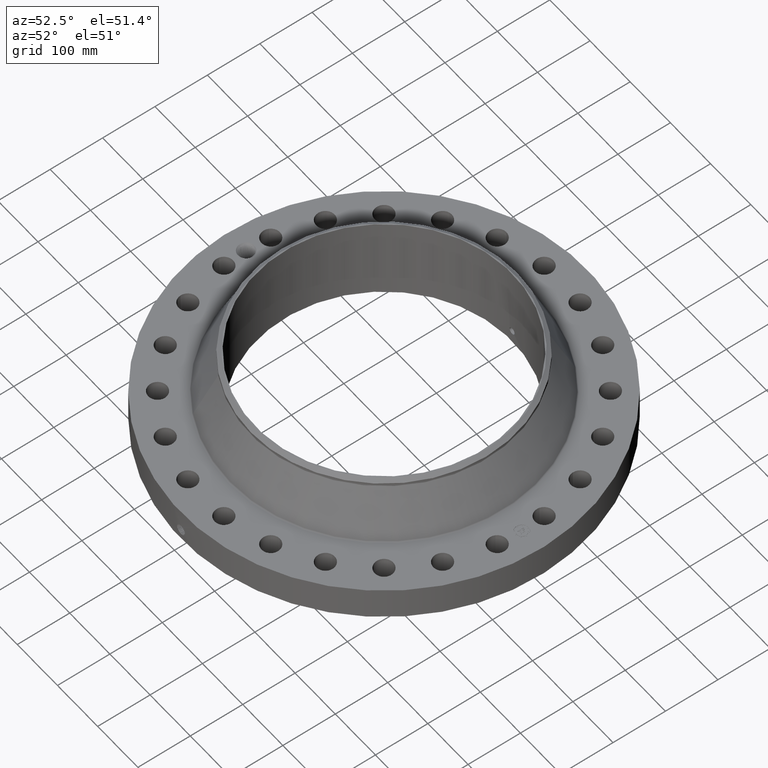
[diagram: clean part render]
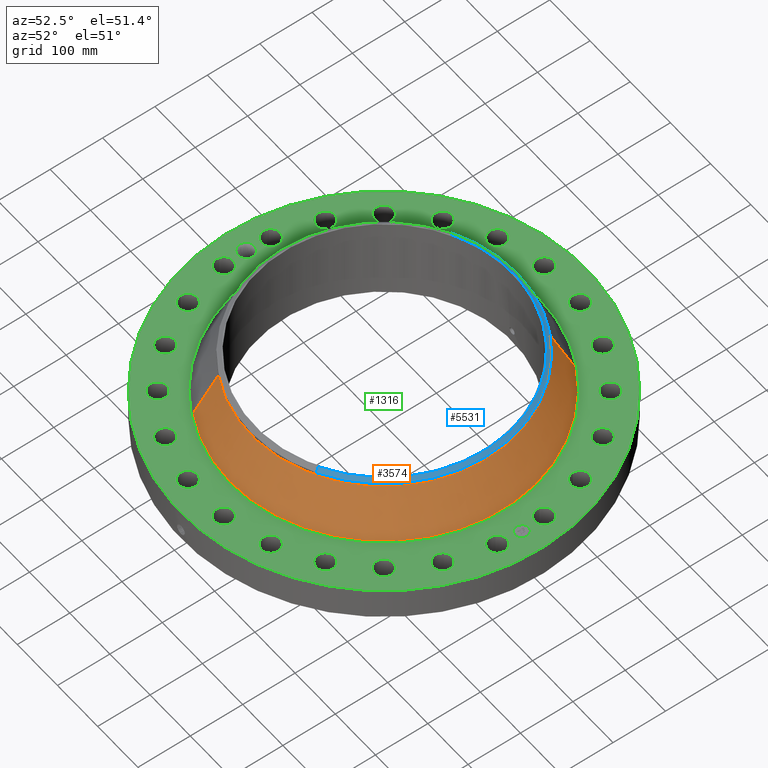
[diagram: same view with three faces highlighted in distinct colors, each labeled with its STEP entity id]
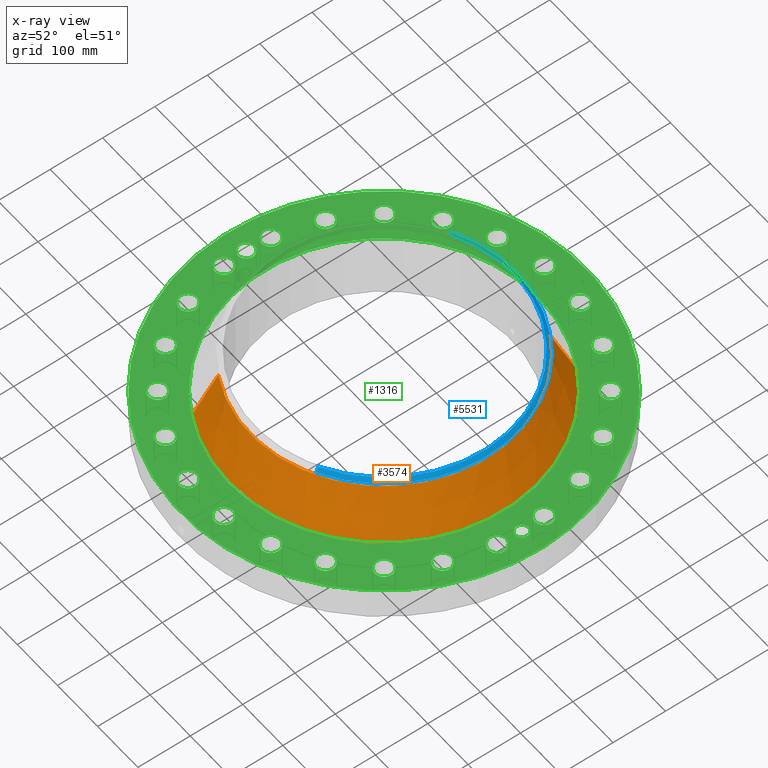
[diagram: x-ray of the same camera — body ghosted, the three highlighted faces saturated]
A machine part, auxiliary view with three faces highlighted in distinct colors.
The next image is the same camera in x-ray (body ghosted, the three faces saturated) — at least one of them is partly hidden behind the body in this view.
Their STEP definitions:

[orange] entity #3574 — the highlighted conical surface has half-angle 24.542 deg.
#2853=AXIS2_PLACEMENT_3D('Circle Axis2P3D',#2851,#2852,$) ;
#3547=AXIS2_PLACEMENT_3D('Cone Axis2P3D',#3544,#3545,#3546) ;
#3558=AXIS2_PLACEMENT_3D('Circle Axis2P3D',#3556,#3557,$) ;
#2848=CARTESIAN_POINT('Vertex',(5.52680107724,10.1167415122,2.63015657134)) ;
#2851=CARTESIAN_POINT('Axis2P3D Location',(0.,0.,2.63015657134)) ;
#2855=CARTESIAN_POINT('Vertex',(-5.52680107724,-10.1167415122,2.63015657134)) ;
#3544=CARTESIAN_POINT('Axis2P3D Location',(0.,0.,5.97645135496)) ;
#3549=CARTESIAN_POINT('Line Origine',(5.16052823165,9.44628356559,4.30330396315)) ;
#3553=CARTESIAN_POINT('Vertex',(4.79425538606,8.77582561894,5.97645135496)) ;
#3556=CARTESIAN_POINT('Axis2P3D Location',(0.,0.,5.97645135496)) ;
#3560=CARTESIAN_POINT('Vertex',(-4.79425538606,-8.77582561894,5.97645135496)) ;
#3563=CARTESIAN_POINT('Line Origine',(-5.16052823165,-9.44628356559,4.30330396315)) ;
#2852=DIRECTION('Axis2P3D Direction',(0.,0.,-0.0393700787402)) ;
#3545=DIRECTION('Axis2P3D Direction',(0.,0.,-0.0393700787402)) ;
#3546=DIRECTION('Axis2P3D XDirection',(-0.0188750212049,-0.0345504945626,0.)) ;
#3550=DIRECTION('Vector Direction',(0.00783996477526,0.0143509592598,-0.0358132380643)) ;
#3557=DIRECTION('Axis2P3D Direction',(0.,0.,-0.0393700787402)) ;
#3564=DIRECTION('Vector Direction',(-0.00783996477526,-0.0143509592598,-0.0358132380643)) ;
#3551=VECTOR('Line Direction',#3550,0.0393700787402) ;
#3565=VECTOR('Line Direction',#3564,0.0393700787402) ;
#3569=ORIENTED_EDGE('',*,*,#2857,.F.) ;
#3570=ORIENTED_EDGE('',*,*,#3555,.T.) ;
#3571=ORIENTED_EDGE('',*,*,#3562,.T.) ;
#3572=ORIENTED_EDGE('',*,*,#3567,.F.) ;
#3574=ADVANCED_FACE('PartBody',(#3573),#3548,.T.) ;
#2854=CIRCLE('generated circle',#2853,11.5279655175) ;
#3559=CIRCLE('generated circle',#3558,10.) ;
#3548=CONICAL_SURFACE('Cone',#3547,10.,0.428340615565) ;
#2857=EDGE_CURVE('',#2849,#2856,#2854,.T.) ;
#3555=EDGE_CURVE('',#2849,#3554,#3552,.F.) ;
#3562=EDGE_CURVE('',#3554,#3561,#3559,.T.) ;
#3567=EDGE_CURVE('',#2856,#3561,#3566,.F.) ;
#3568=EDGE_LOOP('',(#3569,#3570,#3571,#3572)) ;
#3573=FACE_OUTER_BOUND('',#3568,.T.) ;
#3552=LINE('Line',#3549,#3551) ;
#3566=LINE('Line',#3563,#3565) ;
#2849=VERTEX_POINT('',#2848) ;
#2856=VERTEX_POINT('',#2855) ;
#3554=VERTEX_POINT('',#3553) ;
#3561=VERTEX_POINT('',#3560) ;

[blue] entity #5531 — the highlighted conical surface has half-angle 52.5 deg.
#4358=AXIS2_PLACEMENT_3D('Circle Axis2P3D',#4356,#4357,$) ;
#4385=AXIS2_PLACEMENT_3D('Circle Axis2P3D',#4383,#4384,$) ;
#5159=AXIS2_PLACEMENT_3D('Circle Axis2P3D',#5157,#5158,$) ;
#5512=AXIS2_PLACEMENT_3D('Cone Axis2P3D',#5509,#5510,#5511) ;
#4353=CARTESIAN_POINT('Vertex',(4.79425538606,8.77582561894,6.2126718274)) ;
#4356=CARTESIAN_POINT('Axis2P3D Location',(0.,0.,6.2126718274)) ;
#4360=CARTESIAN_POINT('Vertex',(4.79425538606,-8.77582561894,6.2126718274)) ;
#4380=CARTESIAN_POINT('Vertex',(-4.79425538606,8.77582561894,6.2126718274)) ;
#4383=CARTESIAN_POINT('Axis2P3D Location',(0.,0.,6.2126718274)) ;
#5157=CARTESIAN_POINT('Axis2P3D Location',(0.,0.,6.44000000003)) ;
#5161=CARTESIAN_POINT('Vertex',(4.65222085149,-8.51583314735,6.44000000003)) ;
#5163=CARTESIAN_POINT('Vertex',(-4.65222085149,8.51583314735,6.44000000003)) ;
#5509=CARTESIAN_POINT('Axis2P3D Location',(0.,0.,6.44000000003)) ;
#5514=CARTESIAN_POINT('Line Origine',(-4.72323811878,8.64582938315,6.32633591372)) ;
#5519=CARTESIAN_POINT('Line Origine',(4.72323811878,-8.64582938315,6.32633591372)) ;
#4357=DIRECTION('Axis2P3D Direction',(0.,0.,-0.0393700787402)) ;
#4384=DIRECTION('Axis2P3D Direction',(0.,0.,-0.0393700787402)) ;
#5158=DIRECTION('Axis2P3D Direction',(0.,0.,-0.0393700787402)) ;
#5510=DIRECTION('Axis2P3D Direction',(-0.,-0.,-0.0393700787402)) ;
#5511=DIRECTION('Axis2P3D XDirection',(0.0188750212049,-0.0345504945626,0.)) ;
#5515=DIRECTION('Vector Direction',(-0.014974561121,0.02741075027,-0.023966985394)) ;
#5520=DIRECTION('Vector Direction',(0.014974561121,-0.02741075027,-0.023966985394)) ;
#5516=VECTOR('Line Direction',#5515,0.0393700787402) ;
#5521=VECTOR('Line Direction',#5520,0.0393700787402) ;
#5525=ORIENTED_EDGE('',*,*,#5518,.F.) ;
#5526=ORIENTED_EDGE('',*,*,#5165,.F.) ;
#5527=ORIENTED_EDGE('',*,*,#5523,.T.) ;
#5528=ORIENTED_EDGE('',*,*,#4362,.T.) ;
#5529=ORIENTED_EDGE('',*,*,#4387,.F.) ;
#5531=ADVANCED_FACE('PartBody',(#5530),#5513,.T.) ;
#4359=CIRCLE('generated circle',#4358,10.) ;
#4386=CIRCLE('generated circle',#4385,10.) ;
#5160=CIRCLE('generated circle',#5159,9.70374015752) ;
#5513=CONICAL_SURFACE('Cone',#5512,9.70374015752,0.916297857297) ;
#4362=EDGE_CURVE('',#4361,#4354,#4359,.F.) ;
#4387=EDGE_CURVE('',#4381,#4354,#4386,.T.) ;
#5165=EDGE_CURVE('',#5162,#5164,#5160,.F.) ;
#5518=EDGE_CURVE('',#5164,#4381,#5517,.T.) ;
#5523=EDGE_CURVE('',#5162,#4361,#5522,.T.) ;
#5524=EDGE_LOOP('',(#5525,#5526,#5527,#5528,#5529)) ;
#5530=FACE_OUTER_BOUND('',#5524,.T.) ;
#5517=LINE('Line',#5514,#5516) ;
#5522=LINE('Line',#5519,#5521) ;
#4354=VERTEX_POINT('',#4353) ;
#4361=VERTEX_POINT('',#4360) ;
#4381=VERTEX_POINT('',#4380) ;
#5162=VERTEX_POINT('',#5161) ;
#5164=VERTEX_POINT('',#5163) ;

[green] entity #1316 — the highlighted planar face has unit normal (0, 0, -1).
#58=AXIS2_PLACEMENT_3D('Circle Axis2P3D',#56,#57,$) ;
#691=AXIS2_PLACEMENT_3D('Circle Axis2P3D',#689,#690,$) ;
#791=AXIS2_PLACEMENT_3D('Plane Axis2P3D',#788,#789,#790) ;
#824=AXIS2_PLACEMENT_3D('Circle Axis2P3D',#822,#823,$) ;
#831=AXIS2_PLACEMENT_3D('Circle Axis2P3D',#829,#830,$) ;
#838=AXIS2_PLACEMENT_3D('Circle Axis2P3D',#836,#837,$) ;
#850=AXIS2_PLACEMENT_3D('Circle Axis2P3D',#848,#849,$) ;
#859=AXIS2_PLACEMENT_3D('Circle Axis2P3D',#857,#858,$) ;
#868=AXIS2_PLACEMENT_3D('Circle Axis2P3D',#866,#867,$) ;
#877=AXIS2_PLACEMENT_3D('Circle Axis2P3D',#875,#876,$) ;
#886=AXIS2_PLACEMENT_3D('Circle Axis2P3D',#884,#885,$) ;
#895=AXIS2_PLACEMENT_3D('Circle Axis2P3D',#893,#894,$) ;
#904=AXIS2_PLACEMENT_3D('Circle Axis2P3D',#902,#903,$) ;
#913=AXIS2_PLACEMENT_3D('Circle Axis2P3D',#911,#912,$) ;
#922=AXIS2_PLACEMENT_3D('Circle Axis2P3D',#920,#921,$) ;
#931=AXIS2_PLACEMENT_3D('Circle Axis2P3D',#929,#930,$) ;
#940=AXIS2_PLACEMENT_3D('Circle Axis2P3D',#938,#939,$) ;
#949=AXIS2_PLACEMENT_3D('Circle Axis2P3D',#947,#948,$) ;
#958=AXIS2_PLACEMENT_3D('Circle Axis2P3D',#956,#957,$) ;
#967=AXIS2_PLACEMENT_3D('Circle Axis2P3D',#965,#966,$) ;
#976=AXIS2_PLACEMENT_3D('Circle Axis2P3D',#974,#975,$) ;
#985=AXIS2_PLACEMENT_3D('Circle Axis2P3D',#983,#984,$) ;
#994=AXIS2_PLACEMENT_3D('Circle Axis2P3D',#992,#993,$) ;
#1003=AXIS2_PLACEMENT_3D('Circle Axis2P3D',#1001,#1002,$) ;
#1012=AXIS2_PLACEMENT_3D('Circle Axis2P3D',#1010,#1011,$) ;
#1021=AXIS2_PLACEMENT_3D('Circle Axis2P3D',#1019,#1020,$) ;
#1030=AXIS2_PLACEMENT_3D('Circle Axis2P3D',#1028,#1029,$) ;
#1039=AXIS2_PLACEMENT_3D('Circle Axis2P3D',#1037,#1038,$) ;
#1048=AXIS2_PLACEMENT_3D('Circle Axis2P3D',#1046,#1047,$) ;
#1057=AXIS2_PLACEMENT_3D('Circle Axis2P3D',#1055,#1056,$) ;
#1066=AXIS2_PLACEMENT_3D('Circle Axis2P3D',#1064,#1065,$) ;
#1075=AXIS2_PLACEMENT_3D('Circle Axis2P3D',#1073,#1074,$) ;
#1084=AXIS2_PLACEMENT_3D('Circle Axis2P3D',#1082,#1083,$) ;
#1093=AXIS2_PLACEMENT_3D('Circle Axis2P3D',#1091,#1092,$) ;
#1102=AXIS2_PLACEMENT_3D('Circle Axis2P3D',#1100,#1101,$) ;
#1111=AXIS2_PLACEMENT_3D('Circle Axis2P3D',#1109,#1110,$) ;
#1120=AXIS2_PLACEMENT_3D('Circle Axis2P3D',#1118,#1119,$) ;
#1129=AXIS2_PLACEMENT_3D('Circle Axis2P3D',#1127,#1128,$) ;
#1138=AXIS2_PLACEMENT_3D('Circle Axis2P3D',#1136,#1137,$) ;
#1147=AXIS2_PLACEMENT_3D('Circle Axis2P3D',#1145,#1146,$) ;
#1156=AXIS2_PLACEMENT_3D('Circle Axis2P3D',#1154,#1155,$) ;
#1165=AXIS2_PLACEMENT_3D('Circle Axis2P3D',#1163,#1164,$) ;
#1174=AXIS2_PLACEMENT_3D('Circle Axis2P3D',#1172,#1173,$) ;
#1183=AXIS2_PLACEMENT_3D('Circle Axis2P3D',#1181,#1182,$) ;
#1192=AXIS2_PLACEMENT_3D('Circle Axis2P3D',#1190,#1191,$) ;
#1201=AXIS2_PLACEMENT_3D('Circle Axis2P3D',#1199,#1200,$) ;
#1210=AXIS2_PLACEMENT_3D('Circle Axis2P3D',#1208,#1209,$) ;
#1219=AXIS2_PLACEMENT_3D('Circle Axis2P3D',#1217,#1218,$) ;
#1228=AXIS2_PLACEMENT_3D('Circle Axis2P3D',#1226,#1227,$) ;
#1237=AXIS2_PLACEMENT_3D('Circle Axis2P3D',#1235,#1236,$) ;
#1246=AXIS2_PLACEMENT_3D('Circle Axis2P3D',#1244,#1245,$) ;
#1255=AXIS2_PLACEMENT_3D('Circle Axis2P3D',#1253,#1254,$) ;
#1264=AXIS2_PLACEMENT_3D('Circle Axis2P3D',#1262,#1263,$) ;
#1273=AXIS2_PLACEMENT_3D('Circle Axis2P3D',#1271,#1272,$) ;
#1282=AXIS2_PLACEMENT_3D('Circle Axis2P3D',#1280,#1281,$) ;
#1291=AXIS2_PLACEMENT_3D('Circle Axis2P3D',#1289,#1290,$) ;
#1300=AXIS2_PLACEMENT_3D('Circle Axis2P3D',#1298,#1299,$) ;
#1309=AXIS2_PLACEMENT_3D('Circle Axis2P3D',#1307,#1308,$) ;
#53=CARTESIAN_POINT('Vertex',(-7.31123946374,-13.3831340689,2.56000000001)) ;
#56=CARTESIAN_POINT('Axis2P3D Location',(0.,0.,2.56000000001)) ;
#60=CARTESIAN_POINT('Vertex',(7.31123946374,13.3831340689,2.56000000001)) ;
#689=CARTESIAN_POINT('Axis2P3D Location',(0.,0.,2.56000000001)) ;
#788=CARTESIAN_POINT('Axis2P3D Location',(0.,15.2500000001,2.56000000001)) ;
#798=CARTESIAN_POINT('Control Point',(-12.8750000001,0.,2.56000000001)) ;
#799=CARTESIAN_POINT('Control Point',(-12.8770534027,0.0564977238965,2.56000000001)) ;
#800=CARTESIAN_POINT('Control Point',(-12.8854952375,0.112654120815,2.56000000001)) ;
#801=CARTESIAN_POINT('Control Point',(-12.9002771435,0.167499056641,2.56000000001)) ;
#802=CARTESIAN_POINT('Control Point',(-12.9211200364,0.220071923733,2.56000000001)) ;
#803=CARTESIAN_POINT('Control Point',(-12.9475513713,0.269526081721,2.56000000001)) ;
#804=CARTESIAN_POINT('Vertex',(-12.8750000001,0.,2.56000000001)) ;
#806=CARTESIAN_POINT('Vertex',(-12.9475513713,0.269526081721,2.56000000001)) ;
#810=CARTESIAN_POINT('Control Point',(-12.8750000001,0.,2.56000000001)) ;
#811=CARTESIAN_POINT('Control Point',(-12.8768633144,-0.0512676004605,2.56000000001)) ;
#812=CARTESIAN_POINT('Control Point',(-12.8839870229,-0.102254143462,2.56000000001)) ;
#813=CARTESIAN_POINT('Control Point',(-12.8963262911,-0.152216782712,2.56000000001)) ;
#814=CARTESIAN_POINT('Control Point',(-12.9154955173,-0.205462066364,2.56000000001)) ;
#815=CARTESIAN_POINT('Control Point',(-12.9403815735,-0.255800325762,2.56000000001)) ;
#816=CARTESIAN_POINT('Control Point',(-12.9427802176,-0.260523378867,2.56000000001)) ;
#817=CARTESIAN_POINT('Control Point',(-12.9452289965,-0.26521910835,2.56000000001)) ;
#818=CARTESIAN_POINT('Control Point',(-12.9477275055,-0.269886805656,2.56000000001)) ;
#819=CARTESIAN_POINT('Vertex',(-12.9477275055,-0.269886805656,2.56000000001)) ;
#822=CARTESIAN_POINT('Axis2P3D Location',(-13.5000000001,8.95171950564E-015,2.56000000001)) ;
#826=CARTESIAN_POINT('Vertex',(-12.9605587751,-0.294698084326,2.56000000001)) ;
#829=CARTESIAN_POINT('Axis2P3D Location',(-13.5000000001,8.95171950564E-015,2.56000000001)) ;
#833=CARTESIAN_POINT('Vertex',(-14.039441225,0.294698084326,2.56000000001)) ;
#836=CARTESIAN_POINT('Axis2P3D Location',(-13.5000000001,8.95171950564E-015,2.56000000001)) ;
#848=CARTESIAN_POINT('Axis2P3D Location',(13.3845056286,-1.76210359498,2.56000000001)) ;
#852=CARTESIAN_POINT('Vertex',(12.7789736609,-1.43129997334,2.56000000001)) ;
#854=CARTESIAN_POINT('Vertex',(13.9900375963,-2.09290721662,2.56000000001)) ;
#857=CARTESIAN_POINT('Axis2P3D Location',(13.3845056286,-1.76210359498,2.56000000001)) ;
#866=CARTESIAN_POINT('Axis2P3D Location',(0.,0.,2.56000000001)) ;
#870=CARTESIAN_POINT('Vertex',(-5.57913456957,-10.2125373274,2.56000000001)) ;
#872=CARTESIAN_POINT('Vertex',(5.57913456957,10.2125373274,2.56000000001)) ;
#875=CARTESIAN_POINT('Axis2P3D Location',(0.,0.,2.56000000001)) ;
#884=CARTESIAN_POINT('Axis2P3D Location',(12.472373689,-5.16622633695,2.56000000001)) ;
#888=CARTESIAN_POINT('Vertex',(12.9716543777,-5.64248130418,2.56000000001)) ;
#890=CARTESIAN_POINT('Vertex',(11.9730930002,-4.68997136972,2.56000000001)) ;
#893=CARTESIAN_POINT('Axis2P3D Location',(12.472373689,-5.16622633695,2.56000000001)) ;
#902=CARTESIAN_POINT('Axis2P3D Location',(10.710270094,-8.21827929165,2.56000000001)) ;
#906=CARTESIAN_POINT('Vertex',(11.06927435,-8.80752961551,2.56000000001)) ;
#908=CARTESIAN_POINT('Vertex',(10.351265838,-7.62902896779,2.56000000001)) ;
#911=CARTESIAN_POINT('Axis2P3D Location',(10.710270094,-8.21827929165,2.56000000001)) ;
#920=CARTESIAN_POINT('Axis2P3D Location',(8.21827929165,-10.710270094,2.56000000001)) ;
#924=CARTESIAN_POINT('Vertex',(8.41254156814,-11.3723593387,2.56000000001)) ;
#926=CARTESIAN_POINT('Vertex',(8.02401701516,-10.0481808493,2.56000000001)) ;
#929=CARTESIAN_POINT('Axis2P3D Location',(8.21827929165,-10.710270094,2.56000000001)) ;
#938=CARTESIAN_POINT('Axis2P3D Location',(5.16622633695,-12.472373689,2.56000000001)) ;
#942=CARTESIAN_POINT('Vertex',(5.1825079808,-13.1621815666,2.56000000001)) ;
#944=CARTESIAN_POINT('Vertex',(5.1499446931,-11.7825658113,2.56000000001)) ;
#947=CARTESIAN_POINT('Axis2P3D Location',(5.16622633695,-12.472373689,2.56000000001)) ;
#956=CARTESIAN_POINT('Axis2P3D Location',(1.76210359498,-13.3845056286,2.56000000001)) ;
#960=CARTESIAN_POINT('Vertex',(1.59929503907,-14.0550228723,2.56000000001)) ;
#962=CARTESIAN_POINT('Vertex',(1.92491215089,-12.7139883849,2.56000000001)) ;
#965=CARTESIAN_POINT('Axis2P3D Location',(1.76210359498,-13.3845056286,2.56000000001)) ;
#974=CARTESIAN_POINT('Axis2P3D Location',(-1.76210359498,-13.3845056286,2.56000000001)) ;
#978=CARTESIAN_POINT('Vertex',(-2.09290721662,-13.9900375963,2.56000000001)) ;
#980=CARTESIAN_POINT('Vertex',(-1.43129997334,-12.7789736609,2.56000000001)) ;
#983=CARTESIAN_POINT('Axis2P3D Location',(-1.76210359498,-13.3845056286,2.56000000001)) ;
#992=CARTESIAN_POINT('Axis2P3D Location',(-5.16622633695,-12.472373689,2.56000000001)) ;
#996=CARTESIAN_POINT('Vertex',(-5.64248130418,-12.9716543777,2.56000000001)) ;
#998=CARTESIAN_POINT('Vertex',(-4.68997136972,-11.9730930002,2.56000000001)) ;
#1001=CARTESIAN_POINT('Axis2P3D Location',(-5.16622633695,-12.472373689,2.56000000001)) ;
#1010=CARTESIAN_POINT('Axis2P3D Location',(-8.21827929165,-10.710270094,2.56000000001)) ;
#1014=CARTESIAN_POINT('Vertex',(-8.80752961551,-11.06927435,2.56000000001)) ;
#1016=CARTESIAN_POINT('Vertex',(-7.62902896779,-10.351265838,2.56000000001)) ;
#1019=CARTESIAN_POINT('Axis2P3D Location',(-8.21827929165,-10.710270094,2.56000000001)) ;
#1028=CARTESIAN_POINT('Axis2P3D Location',(-10.710270094,-8.21827929165,2.56000000001)) ;
#1032=CARTESIAN_POINT('Vertex',(-11.3723593387,-8.41254156814,2.56000000001)) ;
#1034=CARTESIAN_POINT('Vertex',(-10.0481808493,-8.02401701516,2.56000000001)) ;
#1037=CARTESIAN_POINT('Axis2P3D Location',(-10.710270094,-8.21827929165,2.56000000001)) ;
#1046=CARTESIAN_POINT('Axis2P3D Location',(-12.472373689,-5.16622633695,2.56000000001)) ;
#1050=CARTESIAN_POINT('Vertex',(-13.1621815666,-5.1825079808,2.56000000001)) ;
#1052=CARTESIAN_POINT('Vertex',(-11.7825658113,-5.1499446931,2.56000000001)) ;
#1055=CARTESIAN_POINT('Axis2P3D Location',(-12.472373689,-5.16622633695,2.56000000001)) ;
#1064=CARTESIAN_POINT('Axis2P3D Location',(-13.3845056286,-1.76210359498,2.56000000001)) ;
#1068=CARTESIAN_POINT('Vertex',(-14.0550228723,-1.59929503907,2.56000000001)) ;
#1070=CARTESIAN_POINT('Vertex',(-12.7139883849,-1.92491215089,2.56000000001)) ;
#1073=CARTESIAN_POINT('Axis2P3D Location',(-13.3845056286,-1.76210359498,2.56000000001)) ;
#1082=CARTESIAN_POINT('Axis2P3D Location',(-13.3845056286,1.76210359498,2.56000000001)) ;
#1086=CARTESIAN_POINT('Vertex',(-13.9900375963,2.09290721662,2.56000000001)) ;
#1088=CARTESIAN_POINT('Vertex',(-12.7789736609,1.43129997334,2.56000000001)) ;
#1091=CARTESIAN_POINT('Axis2P3D Location',(-13.3845056286,1.76210359498,2.56000000001)) ;
#1100=CARTESIAN_POINT('Axis2P3D Location',(-12.472373689,5.16622633695,2.56000000001)) ;
#1104=CARTESIAN_POINT('Vertex',(-12.9716543777,5.64248130418,2.56000000001)) ;
#1106=CARTESIAN_POINT('Vertex',(-11.9730930002,4.68997136972,2.56000000001)) ;
#1109=CARTESIAN_POINT('Axis2P3D Location',(-12.472373689,5.16622633695,2.56000000001)) ;
#1118=CARTESIAN_POINT('Axis2P3D Location',(-10.710270094,8.21827929165,2.56000000001)) ;
#1122=CARTESIAN_POINT('Vertex',(-11.06927435,8.80752961551,2.56000000001)) ;
#1124=CARTESIAN_POINT('Vertex',(-10.351265838,7.62902896779,2.56000000001)) ;
#1127=CARTESIAN_POINT('Axis2P3D Location',(-10.710270094,8.21827929165,2.56000000001)) ;
#1136=CARTESIAN_POINT('Axis2P3D Location',(-8.21827929165,10.710270094,2.56000000001)) ;
#1140=CARTESIAN_POINT('Vertex',(-8.41254156814,11.3723593387,2.56000000001)) ;
#1142=CARTESIAN_POINT('Vertex',(-8.02401701516,10.0481808493,2.56000000001)) ;
#1145=CARTESIAN_POINT('Axis2P3D Location',(-8.21827929165,10.710270094,2.56000000001)) ;
#1154=CARTESIAN_POINT('Axis2P3D Location',(-5.16622633695,12.472373689,2.56000000001)) ;
#1158=CARTESIAN_POINT('Vertex',(-5.1825079808,13.1621815666,2.56000000001)) ;
#1160=CARTESIAN_POINT('Vertex',(-5.1499446931,11.7825658113,2.56000000001)) ;
#1163=CARTESIAN_POINT('Axis2P3D Location',(-5.16622633695,12.472373689,2.56000000001)) ;
#1172=CARTESIAN_POINT('Axis2P3D Location',(-1.76210359498,13.3845056286,2.56000000001)) ;
#1176=CARTESIAN_POINT('Vertex',(-1.59929503907,14.0550228723,2.56000000001)) ;
#1178=CARTESIAN_POINT('Vertex',(-1.92491215089,12.7139883849,2.56000000001)) ;
#1181=CARTESIAN_POINT('Axis2P3D Location',(-1.76210359498,13.3845056286,2.56000000001)) ;
#1190=CARTESIAN_POINT('Axis2P3D Location',(1.76210359498,13.3845056286,2.56000000001)) ;
#1194=CARTESIAN_POINT('Vertex',(2.09290721662,13.9900375963,2.56000000001)) ;
#1196=CARTESIAN_POINT('Vertex',(1.43129997334,12.7789736609,2.56000000001)) ;
#1199=CARTESIAN_POINT('Axis2P3D Location',(1.76210359498,13.3845056286,2.56000000001)) ;
#1208=CARTESIAN_POINT('Axis2P3D Location',(5.16622633695,12.472373689,2.56000000001)) ;
#1212=CARTESIAN_POINT('Vertex',(5.64248130418,12.9716543777,2.56000000001)) ;
#1214=CARTESIAN_POINT('Vertex',(4.68997136972,11.9730930002,2.56000000001)) ;
#1217=CARTESIAN_POINT('Axis2P3D Location',(5.16622633695,12.472373689,2.56000000001)) ;
#1226=CARTESIAN_POINT('Axis2P3D Location',(8.21827929165,10.710270094,2.56000000001)) ;
#1230=CARTESIAN_POINT('Vertex',(8.80752961551,11.06927435,2.56000000001)) ;
#1232=CARTESIAN_POINT('Vertex',(7.62902896779,10.351265838,2.56000000001)) ;
#1235=CARTESIAN_POINT('Axis2P3D Location',(8.21827929165,10.710270094,2.56000000001)) ;
#1244=CARTESIAN_POINT('Axis2P3D Location',(10.710270094,8.21827929165,2.56000000001)) ;
#1248=CARTESIAN_POINT('Vertex',(11.3723593387,8.41254156814,2.56000000001)) ;
#1250=CARTESIAN_POINT('Vertex',(10.0481808493,8.02401701516,2.56000000001)) ;
#1253=CARTESIAN_POINT('Axis2P3D Location',(10.710270094,8.21827929165,2.56000000001)) ;
#1262=CARTESIAN_POINT('Axis2P3D Location',(12.472373689,5.16622633695,2.56000000001)) ;
#1266=CARTESIAN_POINT('Vertex',(13.1621815666,5.1825079808,2.56000000001)) ;
#1268=CARTESIAN_POINT('Vertex',(11.7825658113,5.1499446931,2.56000000001)) ;
#1271=CARTESIAN_POINT('Axis2P3D Location',(12.472373689,5.16622633695,2.56000000001)) ;
#1280=CARTESIAN_POINT('Axis2P3D Location',(13.3845056286,1.76210359498,2.56000000001)) ;
#1284=CARTESIAN_POINT('Vertex',(14.0550228723,1.59929503907,2.56000000001)) ;
#1286=CARTESIAN_POINT('Vertex',(12.7139883849,1.92491215089,2.56000000001)) ;
#1289=CARTESIAN_POINT('Axis2P3D Location',(13.3845056286,1.76210359498,2.56000000001)) ;
#1298=CARTESIAN_POINT('Axis2P3D Location',(13.5000000001,0.,2.56000000001)) ;
#1302=CARTESIAN_POINT('Vertex',(13.5000000001,0.499999995002,2.56000000001)) ;
#1304=CARTESIAN_POINT('Vertex',(13.5000000001,-0.499999995002,2.56000000001)) ;
#1307=CARTESIAN_POINT('Axis2P3D Location',(13.5000000001,0.,2.56000000001)) ;
#57=DIRECTION('Axis2P3D Direction',(0.,0.,-0.0393700787402)) ;
#690=DIRECTION('Axis2P3D Direction',(0.,0.,-0.0393700787402)) ;
#789=DIRECTION('Axis2P3D Direction',(0.,0.,-0.0393700787402)) ;
#790=DIRECTION('Axis2P3D XDirection',(0.0393700787402,0.,0.)) ;
#823=DIRECTION('Axis2P3D Direction',(0.,0.,-0.0393700787402)) ;
#830=DIRECTION('Axis2P3D Direction',(0.,0.,-0.0393700787402)) ;
#837=DIRECTION('Axis2P3D Direction',(0.,0.,-0.0393700787402)) ;
#849=DIRECTION('Axis2P3D Direction',(0.,0.,-0.0393700787402)) ;
#858=DIRECTION('Axis2P3D Direction',(0.,0.,-0.0393700787402)) ;
#867=DIRECTION('Axis2P3D Direction',(0.,0.,-0.0393700787402)) ;
#876=DIRECTION('Axis2P3D Direction',(0.,0.,-0.0393700787402)) ;
#885=DIRECTION('Axis2P3D Direction',(0.,0.,-0.0393700787402)) ;
#894=DIRECTION('Axis2P3D Direction',(0.,0.,-0.0393700787402)) ;
#903=DIRECTION('Axis2P3D Direction',(0.,0.,-0.0393700787402)) ;
#912=DIRECTION('Axis2P3D Direction',(0.,0.,-0.0393700787402)) ;
#921=DIRECTION('Axis2P3D Direction',(0.,0.,-0.0393700787402)) ;
#930=DIRECTION('Axis2P3D Direction',(0.,0.,-0.0393700787402)) ;
#939=DIRECTION('Axis2P3D Direction',(0.,0.,-0.0393700787402)) ;
#948=DIRECTION('Axis2P3D Direction',(0.,0.,-0.0393700787402)) ;
#957=DIRECTION('Axis2P3D Direction',(0.,0.,-0.0393700787402)) ;
#966=DIRECTION('Axis2P3D Direction',(0.,0.,-0.0393700787402)) ;
#975=DIRECTION('Axis2P3D Direction',(0.,0.,-0.0393700787402)) ;
#984=DIRECTION('Axis2P3D Direction',(0.,0.,-0.0393700787402)) ;
#993=DIRECTION('Axis2P3D Direction',(0.,0.,-0.0393700787402)) ;
#1002=DIRECTION('Axis2P3D Direction',(0.,0.,-0.0393700787402)) ;
#1011=DIRECTION('Axis2P3D Direction',(0.,0.,-0.0393700787402)) ;
#1020=DIRECTION('Axis2P3D Direction',(0.,0.,-0.0393700787402)) ;
#1029=DIRECTION('Axis2P3D Direction',(0.,0.,-0.0393700787402)) ;
#1038=DIRECTION('Axis2P3D Direction',(0.,0.,-0.0393700787402)) ;
#1047=DIRECTION('Axis2P3D Direction',(0.,0.,-0.0393700787402)) ;
#1056=DIRECTION('Axis2P3D Direction',(0.,0.,-0.0393700787402)) ;
#1065=DIRECTION('Axis2P3D Direction',(0.,0.,-0.0393700787402)) ;
#1074=DIRECTION('Axis2P3D Direction',(0.,0.,-0.0393700787402)) ;
#1083=DIRECTION('Axis2P3D Direction',(0.,0.,-0.0393700787402)) ;
#1092=DIRECTION('Axis2P3D Direction',(0.,0.,-0.0393700787402)) ;
#1101=DIRECTION('Axis2P3D Direction',(0.,0.,-0.0393700787402)) ;
#1110=DIRECTION('Axis2P3D Direction',(0.,0.,-0.0393700787402)) ;
#1119=DIRECTION('Axis2P3D Direction',(0.,0.,-0.0393700787402)) ;
#1128=DIRECTION('Axis2P3D Direction',(0.,0.,-0.0393700787402)) ;
#1137=DIRECTION('Axis2P3D Direction',(0.,0.,-0.0393700787402)) ;
#1146=DIRECTION('Axis2P3D Direction',(0.,0.,-0.0393700787402)) ;
#1155=DIRECTION('Axis2P3D Direction',(0.,0.,-0.0393700787402)) ;
#1164=DIRECTION('Axis2P3D Direction',(0.,0.,-0.0393700787402)) ;
#1173=DIRECTION('Axis2P3D Direction',(0.,0.,-0.0393700787402)) ;
#1182=DIRECTION('Axis2P3D Direction',(0.,0.,-0.0393700787402)) ;
#1191=DIRECTION('Axis2P3D Direction',(0.,0.,-0.0393700787402)) ;
#1200=DIRECTION('Axis2P3D Direction',(0.,0.,-0.0393700787402)) ;
#1209=DIRECTION('Axis2P3D Direction',(0.,0.,-0.0393700787402)) ;
#1218=DIRECTION('Axis2P3D Direction',(0.,0.,-0.0393700787402)) ;
#1227=DIRECTION('Axis2P3D Direction',(0.,0.,-0.0393700787402)) ;
#1236=DIRECTION('Axis2P3D Direction',(0.,0.,-0.0393700787402)) ;
#1245=DIRECTION('Axis2P3D Direction',(0.,0.,-0.0393700787402)) ;
#1254=DIRECTION('Axis2P3D Direction',(0.,0.,-0.0393700787402)) ;
#1263=DIRECTION('Axis2P3D Direction',(0.,0.,-0.0393700787402)) ;
#1272=DIRECTION('Axis2P3D Direction',(0.,0.,-0.0393700787402)) ;
#1281=DIRECTION('Axis2P3D Direction',(0.,0.,-0.0393700787402)) ;
#1290=DIRECTION('Axis2P3D Direction',(0.,0.,-0.0393700787402)) ;
#1299=DIRECTION('Axis2P3D Direction',(0.,0.,-0.0393700787402)) ;
#1308=DIRECTION('Axis2P3D Direction',(0.,0.,-0.0393700787402)) ;
#794=ORIENTED_EDGE('',*,*,#693,.F.) ;
#795=ORIENTED_EDGE('',*,*,#62,.F.) ;
#842=ORIENTED_EDGE('',*,*,#808,.F.) ;
#843=ORIENTED_EDGE('',*,*,#821,.T.) ;
#844=ORIENTED_EDGE('',*,*,#828,.T.) ;
#845=ORIENTED_EDGE('',*,*,#835,.T.) ;
#846=ORIENTED_EDGE('',*,*,#840,.T.) ;
#863=ORIENTED_EDGE('',*,*,#856,.T.) ;
#864=ORIENTED_EDGE('',*,*,#861,.T.) ;
#881=ORIENTED_EDGE('',*,*,#874,.T.) ;
#882=ORIENTED_EDGE('',*,*,#879,.T.) ;
#899=ORIENTED_EDGE('',*,*,#892,.T.) ;
#900=ORIENTED_EDGE('',*,*,#897,.T.) ;
#917=ORIENTED_EDGE('',*,*,#910,.T.) ;
#918=ORIENTED_EDGE('',*,*,#915,.T.) ;
#935=ORIENTED_EDGE('',*,*,#928,.T.) ;
#936=ORIENTED_EDGE('',*,*,#933,.T.) ;
#953=ORIENTED_EDGE('',*,*,#946,.T.) ;
#954=ORIENTED_EDGE('',*,*,#951,.T.) ;
#971=ORIENTED_EDGE('',*,*,#964,.T.) ;
#972=ORIENTED_EDGE('',*,*,#969,.T.) ;
#989=ORIENTED_EDGE('',*,*,#982,.T.) ;
#990=ORIENTED_EDGE('',*,*,#987,.T.) ;
#1007=ORIENTED_EDGE('',*,*,#1000,.T.) ;
#1008=ORIENTED_EDGE('',*,*,#1005,.T.) ;
#1025=ORIENTED_EDGE('',*,*,#1018,.T.) ;
#1026=ORIENTED_EDGE('',*,*,#1023,.T.) ;
#1043=ORIENTED_EDGE('',*,*,#1036,.T.) ;
#1044=ORIENTED_EDGE('',*,*,#1041,.T.) ;
#1061=ORIENTED_EDGE('',*,*,#1054,.T.) ;
#1062=ORIENTED_EDGE('',*,*,#1059,.T.) ;
#1079=ORIENTED_EDGE('',*,*,#1072,.T.) ;
#1080=ORIENTED_EDGE('',*,*,#1077,.T.) ;
#1097=ORIENTED_EDGE('',*,*,#1090,.T.) ;
#1098=ORIENTED_EDGE('',*,*,#1095,.T.) ;
#1115=ORIENTED_EDGE('',*,*,#1108,.T.) ;
#1116=ORIENTED_EDGE('',*,*,#1113,.T.) ;
#1133=ORIENTED_EDGE('',*,*,#1126,.T.) ;
#1134=ORIENTED_EDGE('',*,*,#1131,.T.) ;
#1151=ORIENTED_EDGE('',*,*,#1144,.T.) ;
#1152=ORIENTED_EDGE('',*,*,#1149,.T.) ;
#1169=ORIENTED_EDGE('',*,*,#1162,.T.) ;
#1170=ORIENTED_EDGE('',*,*,#1167,.T.) ;
#1187=ORIENTED_EDGE('',*,*,#1180,.T.) ;
#1188=ORIENTED_EDGE('',*,*,#1185,.T.) ;
#1205=ORIENTED_EDGE('',*,*,#1198,.T.) ;
#1206=ORIENTED_EDGE('',*,*,#1203,.T.) ;
#1223=ORIENTED_EDGE('',*,*,#1216,.T.) ;
#1224=ORIENTED_EDGE('',*,*,#1221,.T.) ;
#1241=ORIENTED_EDGE('',*,*,#1234,.T.) ;
#1242=ORIENTED_EDGE('',*,*,#1239,.T.) ;
#1259=ORIENTED_EDGE('',*,*,#1252,.T.) ;
#1260=ORIENTED_EDGE('',*,*,#1257,.T.) ;
#1277=ORIENTED_EDGE('',*,*,#1270,.T.) ;
#1278=ORIENTED_EDGE('',*,*,#1275,.T.) ;
#1295=ORIENTED_EDGE('',*,*,#1288,.T.) ;
#1296=ORIENTED_EDGE('',*,*,#1293,.T.) ;
#1313=ORIENTED_EDGE('',*,*,#1306,.T.) ;
#1314=ORIENTED_EDGE('',*,*,#1311,.T.) ;
#847=FACE_BOUND('',#841,.T.) ;
#865=FACE_BOUND('',#862,.T.) ;
#883=FACE_BOUND('',#880,.T.) ;
#901=FACE_BOUND('',#898,.T.) ;
#919=FACE_BOUND('',#916,.T.) ;
#937=FACE_BOUND('',#934,.T.) ;
#955=FACE_BOUND('',#952,.T.) ;
#973=FACE_BOUND('',#970,.T.) ;
#991=FACE_BOUND('',#988,.T.) ;
#1009=FACE_BOUND('',#1006,.T.) ;
#1027=FACE_BOUND('',#1024,.T.) ;
#1045=FACE_BOUND('',#1042,.T.) ;
#1063=FACE_BOUND('',#1060,.T.) ;
#1081=FACE_BOUND('',#1078,.T.) ;
#1099=FACE_BOUND('',#1096,.T.) ;
#1117=FACE_BOUND('',#1114,.T.) ;
#1135=FACE_BOUND('',#1132,.T.) ;
#1153=FACE_BOUND('',#1150,.T.) ;
#1171=FACE_BOUND('',#1168,.T.) ;
#1189=FACE_BOUND('',#1186,.T.) ;
#1207=FACE_BOUND('',#1204,.T.) ;
#1225=FACE_BOUND('',#1222,.T.) ;
#1243=FACE_BOUND('',#1240,.T.) ;
#1261=FACE_BOUND('',#1258,.T.) ;
#1279=FACE_BOUND('',#1276,.T.) ;
#1297=FACE_BOUND('',#1294,.T.) ;
#1315=FACE_BOUND('',#1312,.T.) ;
#1316=ADVANCED_FACE('PartBody',(#796,#847,#865,#883,#901,#919,#937,#955,#973,#991,#1009,#1027,#1045,#1063,#1081,#1099,#1117,#1135,#1153,#1171,#1189,#1207,#1225,#1243,#1261,#1279,#1297,#1315),#792,.F.) ;
#797=B_SPLINE_CURVE_WITH_KNOTS('',5,(#798,#799,#800,#801,#802,#803),.UNSPECIFIED.,.F.,.U.,(6,6),(0.,9.87780943689),.UNSPECIFIED.) ;
#809=B_SPLINE_CURVE_WITH_KNOTS('',5,(#810,#811,#812,#813,#814,#815,#816,#817,#818),.UNSPECIFIED.,.F.,.U.,(6,3,6),(0.,8.96339803947,9.89725184814),.UNSPECIFIED.) ;
#59=CIRCLE('generated circle',#58,15.2500000001) ;
#692=CIRCLE('generated circle',#691,15.2500000001) ;
#825=CIRCLE('generated circle',#824,0.614690000002) ;
#832=CIRCLE('generated circle',#831,0.614690000002) ;
#839=CIRCLE('generated circle',#838,0.614690000002) ;
#851=CIRCLE('generated circle',#850,0.690000000003) ;
#860=CIRCLE('generated circle',#859,0.690000000003) ;
#869=CIRCLE('generated circle',#868,11.6371242671) ;
#878=CIRCLE('generated circle',#877,11.6371242671) ;
#887=CIRCLE('generated circle',#886,0.690000000003) ;
#896=CIRCLE('generated circle',#895,0.690000000003) ;
#905=CIRCLE('generated circle',#904,0.690000000003) ;
#914=CIRCLE('generated circle',#913,0.690000000003) ;
#923=CIRCLE('generated circle',#922,0.690000000003) ;
#932=CIRCLE('generated circle',#931,0.690000000003) ;
#941=CIRCLE('generated circle',#940,0.690000000003) ;
#950=CIRCLE('generated circle',#949,0.690000000003) ;
#959=CIRCLE('generated circle',#958,0.690000000003) ;
#968=CIRCLE('generated circle',#967,0.690000000003) ;
#977=CIRCLE('generated circle',#976,0.690000000003) ;
#986=CIRCLE('generated circle',#985,0.690000000003) ;
#995=CIRCLE('generated circle',#994,0.690000000003) ;
#1004=CIRCLE('generated circle',#1003,0.690000000003) ;
#1013=CIRCLE('generated circle',#1012,0.690000000003) ;
#1022=CIRCLE('generated circle',#1021,0.690000000003) ;
#1031=CIRCLE('generated circle',#1030,0.690000000003) ;
#1040=CIRCLE('generated circle',#1039,0.690000000003) ;
#1049=CIRCLE('generated circle',#1048,0.690000000003) ;
#1058=CIRCLE('generated circle',#1057,0.690000000003) ;
#1067=CIRCLE('generated circle',#1066,0.690000000003) ;
#1076=CIRCLE('generated circle',#1075,0.690000000003) ;
#1085=CIRCLE('generated circle',#1084,0.690000000003) ;
#1094=CIRCLE('generated circle',#1093,0.690000000003) ;
#1103=CIRCLE('generated circle',#1102,0.690000000003) ;
#1112=CIRCLE('generated circle',#1111,0.690000000003) ;
#1121=CIRCLE('generated circle',#1120,0.690000000003) ;
#1130=CIRCLE('generated circle',#1129,0.690000000003) ;
#1139=CIRCLE('generated circle',#1138,0.690000000003) ;
#1148=CIRCLE('generated circle',#1147,0.690000000003) ;
#1157=CIRCLE('generated circle',#1156,0.690000000003) ;
#1166=CIRCLE('generated circle',#1165,0.690000000003) ;
#1175=CIRCLE('generated circle',#1174,0.690000000003) ;
#1184=CIRCLE('generated circle',#1183,0.690000000003) ;
#1193=CIRCLE('generated circle',#1192,0.690000000003) ;
#1202=CIRCLE('generated circle',#1201,0.690000000003) ;
#1211=CIRCLE('generated circle',#1210,0.690000000003) ;
#1220=CIRCLE('generated circle',#1219,0.690000000003) ;
#1229=CIRCLE('generated circle',#1228,0.690000000003) ;
#1238=CIRCLE('generated circle',#1237,0.690000000003) ;
#1247=CIRCLE('generated circle',#1246,0.690000000003) ;
#1256=CIRCLE('generated circle',#1255,0.690000000003) ;
#1265=CIRCLE('generated circle',#1264,0.690000000003) ;
#1274=CIRCLE('generated circle',#1273,0.690000000003) ;
#1283=CIRCLE('generated circle',#1282,0.690000000003) ;
#1292=CIRCLE('generated circle',#1291,0.690000000003) ;
#1301=CIRCLE('generated circle',#1300,0.499999995002) ;
#1310=CIRCLE('generated circle',#1309,0.499999995002) ;
#62=EDGE_CURVE('',#54,#61,#59,.T.) ;
#693=EDGE_CURVE('',#61,#54,#692,.T.) ;
#808=EDGE_CURVE('',#805,#807,#797,.T.) ;
#821=EDGE_CURVE('',#805,#820,#809,.T.) ;
#828=EDGE_CURVE('',#820,#827,#825,.T.) ;
#835=EDGE_CURVE('',#827,#834,#832,.T.) ;
#840=EDGE_CURVE('',#834,#807,#839,.T.) ;
#856=EDGE_CURVE('',#853,#855,#851,.T.) ;
#861=EDGE_CURVE('',#855,#853,#860,.T.) ;
#874=EDGE_CURVE('',#871,#873,#869,.T.) ;
#879=EDGE_CURVE('',#873,#871,#878,.T.) ;
#892=EDGE_CURVE('',#889,#891,#887,.T.) ;
#897=EDGE_CURVE('',#891,#889,#896,.T.) ;
#910=EDGE_CURVE('',#907,#909,#905,.T.) ;
#915=EDGE_CURVE('',#909,#907,#914,.T.) ;
#928=EDGE_CURVE('',#925,#927,#923,.T.) ;
#933=EDGE_CURVE('',#927,#925,#932,.T.) ;
#946=EDGE_CURVE('',#943,#945,#941,.T.) ;
#951=EDGE_CURVE('',#945,#943,#950,.T.) ;
#964=EDGE_CURVE('',#961,#963,#959,.T.) ;
#969=EDGE_CURVE('',#963,#961,#968,.T.) ;
#982=EDGE_CURVE('',#979,#981,#977,.T.) ;
#987=EDGE_CURVE('',#981,#979,#986,.T.) ;
#1000=EDGE_CURVE('',#997,#999,#995,.T.) ;
#1005=EDGE_CURVE('',#999,#997,#1004,.T.) ;
#1018=EDGE_CURVE('',#1015,#1017,#1013,.T.) ;
#1023=EDGE_CURVE('',#1017,#1015,#1022,.T.) ;
#1036=EDGE_CURVE('',#1033,#1035,#1031,.T.) ;
#1041=EDGE_CURVE('',#1035,#1033,#1040,.T.) ;
#1054=EDGE_CURVE('',#1051,#1053,#1049,.T.) ;
#1059=EDGE_CURVE('',#1053,#1051,#1058,.T.) ;
#1072=EDGE_CURVE('',#1069,#1071,#1067,.T.) ;
#1077=EDGE_CURVE('',#1071,#1069,#1076,.T.) ;
#1090=EDGE_CURVE('',#1087,#1089,#1085,.T.) ;
#1095=EDGE_CURVE('',#1089,#1087,#1094,.T.) ;
#1108=EDGE_CURVE('',#1105,#1107,#1103,.T.) ;
#1113=EDGE_CURVE('',#1107,#1105,#1112,.T.) ;
#1126=EDGE_CURVE('',#1123,#1125,#1121,.T.) ;
#1131=EDGE_CURVE('',#1125,#1123,#1130,.T.) ;
#1144=EDGE_CURVE('',#1141,#1143,#1139,.T.) ;
#1149=EDGE_CURVE('',#1143,#1141,#1148,.T.) ;
#1162=EDGE_CURVE('',#1159,#1161,#1157,.T.) ;
#1167=EDGE_CURVE('',#1161,#1159,#1166,.T.) ;
#1180=EDGE_CURVE('',#1177,#1179,#1175,.T.) ;
#1185=EDGE_CURVE('',#1179,#1177,#1184,.T.) ;
#1198=EDGE_CURVE('',#1195,#1197,#1193,.T.) ;
#1203=EDGE_CURVE('',#1197,#1195,#1202,.T.) ;
#1216=EDGE_CURVE('',#1213,#1215,#1211,.T.) ;
#1221=EDGE_CURVE('',#1215,#1213,#1220,.T.) ;
#1234=EDGE_CURVE('',#1231,#1233,#1229,.T.) ;
#1239=EDGE_CURVE('',#1233,#1231,#1238,.T.) ;
#1252=EDGE_CURVE('',#1249,#1251,#1247,.T.) ;
#1257=EDGE_CURVE('',#1251,#1249,#1256,.T.) ;
#1270=EDGE_CURVE('',#1267,#1269,#1265,.T.) ;
#1275=EDGE_CURVE('',#1269,#1267,#1274,.T.) ;
#1288=EDGE_CURVE('',#1285,#1287,#1283,.T.) ;
#1293=EDGE_CURVE('',#1287,#1285,#1292,.T.) ;
#1306=EDGE_CURVE('',#1303,#1305,#1301,.T.) ;
#1311=EDGE_CURVE('',#1305,#1303,#1310,.T.) ;
#793=EDGE_LOOP('',(#794,#795)) ;
#841=EDGE_LOOP('',(#842,#843,#844,#845,#846)) ;
#862=EDGE_LOOP('',(#863,#864)) ;
#880=EDGE_LOOP('',(#881,#882)) ;
#898=EDGE_LOOP('',(#899,#900)) ;
#916=EDGE_LOOP('',(#917,#918)) ;
#934=EDGE_LOOP('',(#935,#936)) ;
#952=EDGE_LOOP('',(#953,#954)) ;
#970=EDGE_LOOP('',(#971,#972)) ;
#988=EDGE_LOOP('',(#989,#990)) ;
#1006=EDGE_LOOP('',(#1007,#1008)) ;
#1024=EDGE_LOOP('',(#1025,#1026)) ;
#1042=EDGE_LOOP('',(#1043,#1044)) ;
#1060=EDGE_LOOP('',(#1061,#1062)) ;
#1078=EDGE_LOOP('',(#1079,#1080)) ;
#1096=EDGE_LOOP('',(#1097,#1098)) ;
#1114=EDGE_LOOP('',(#1115,#1116)) ;
#1132=EDGE_LOOP('',(#1133,#1134)) ;
#1150=EDGE_LOOP('',(#1151,#1152)) ;
#1168=EDGE_LOOP('',(#1169,#1170)) ;
#1186=EDGE_LOOP('',(#1187,#1188)) ;
#1204=EDGE_LOOP('',(#1205,#1206)) ;
#1222=EDGE_LOOP('',(#1223,#1224)) ;
#1240=EDGE_LOOP('',(#1241,#1242)) ;
#1258=EDGE_LOOP('',(#1259,#1260)) ;
#1276=EDGE_LOOP('',(#1277,#1278)) ;
#1294=EDGE_LOOP('',(#1295,#1296)) ;
#1312=EDGE_LOOP('',(#1313,#1314)) ;
#796=FACE_OUTER_BOUND('',#793,.T.) ;
#792=PLANE('',#791) ;
#54=VERTEX_POINT('',#53) ;
#61=VERTEX_POINT('',#60) ;
#805=VERTEX_POINT('',#804) ;
#807=VERTEX_POINT('',#806) ;
#820=VERTEX_POINT('',#819) ;
#827=VERTEX_POINT('',#826) ;
#834=VERTEX_POINT('',#833) ;
#853=VERTEX_POINT('',#852) ;
#855=VERTEX_POINT('',#854) ;
#871=VERTEX_POINT('',#870) ;
#873=VERTEX_POINT('',#872) ;
#889=VERTEX_POINT('',#888) ;
#891=VERTEX_POINT('',#890) ;
#907=VERTEX_POINT('',#906) ;
#909=VERTEX_POINT('',#908) ;
#925=VERTEX_POINT('',#924) ;
#927=VERTEX_POINT('',#926) ;
#943=VERTEX_POINT('',#942) ;
#945=VERTEX_POINT('',#944) ;
#961=VERTEX_POINT('',#960) ;
#963=VERTEX_POINT('',#962) ;
#979=VERTEX_POINT('',#978) ;
#981=VERTEX_POINT('',#980) ;
#997=VERTEX_POINT('',#996) ;
#999=VERTEX_POINT('',#998) ;
#1015=VERTEX_POINT('',#1014) ;
#1017=VERTEX_POINT('',#1016) ;
#1033=VERTEX_POINT('',#1032) ;
#1035=VERTEX_POINT('',#1034) ;
#1051=VERTEX_POINT('',#1050) ;
#1053=VERTEX_POINT('',#1052) ;
#1069=VERTEX_POINT('',#1068) ;
#1071=VERTEX_POINT('',#1070) ;
#1087=VERTEX_POINT('',#1086) ;
#1089=VERTEX_POINT('',#1088) ;
#1105=VERTEX_POINT('',#1104) ;
#1107=VERTEX_POINT('',#1106) ;
#1123=VERTEX_POINT('',#1122) ;
#1125=VERTEX_POINT('',#1124) ;
#1141=VERTEX_POINT('',#1140) ;
#1143=VERTEX_POINT('',#1142) ;
#1159=VERTEX_POINT('',#1158) ;
#1161=VERTEX_POINT('',#1160) ;
#1177=VERTEX_POINT('',#1176) ;
#1179=VERTEX_POINT('',#1178) ;
#1195=VERTEX_POINT('',#1194) ;
#1197=VERTEX_POINT('',#1196) ;
#1213=VERTEX_POINT('',#1212) ;
#1215=VERTEX_POINT('',#1214) ;
#1231=VERTEX_POINT('',#1230) ;
#1233=VERTEX_POINT('',#1232) ;
#1249=VERTEX_POINT('',#1248) ;
#1251=VERTEX_POINT('',#1250) ;
#1267=VERTEX_POINT('',#1266) ;
#1269=VERTEX_POINT('',#1268) ;
#1285=VERTEX_POINT('',#1284) ;
#1287=VERTEX_POINT('',#1286) ;
#1303=VERTEX_POINT('',#1302) ;
#1305=VERTEX_POINT('',#1304) ;